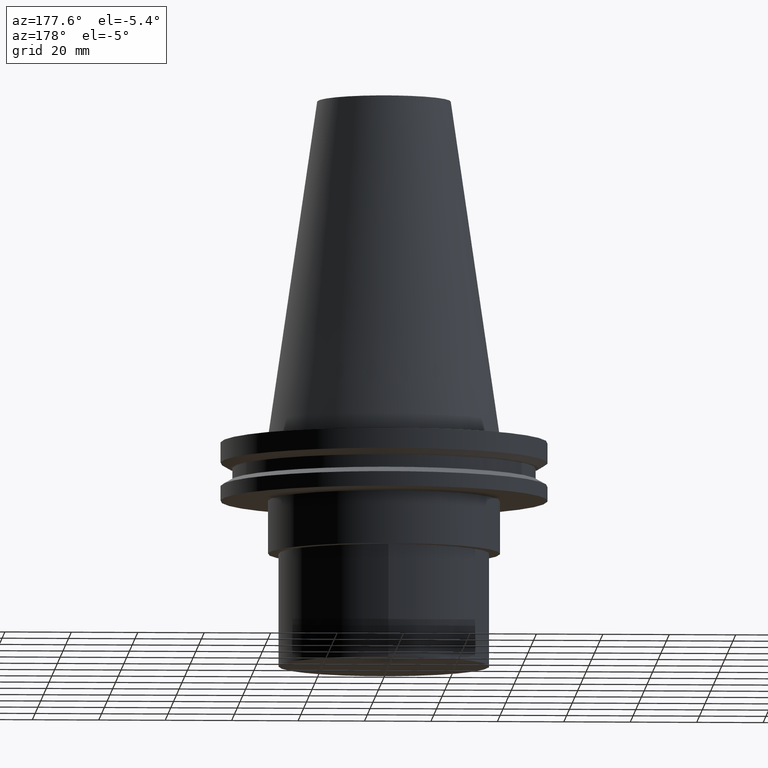
[diagram: clean part render]
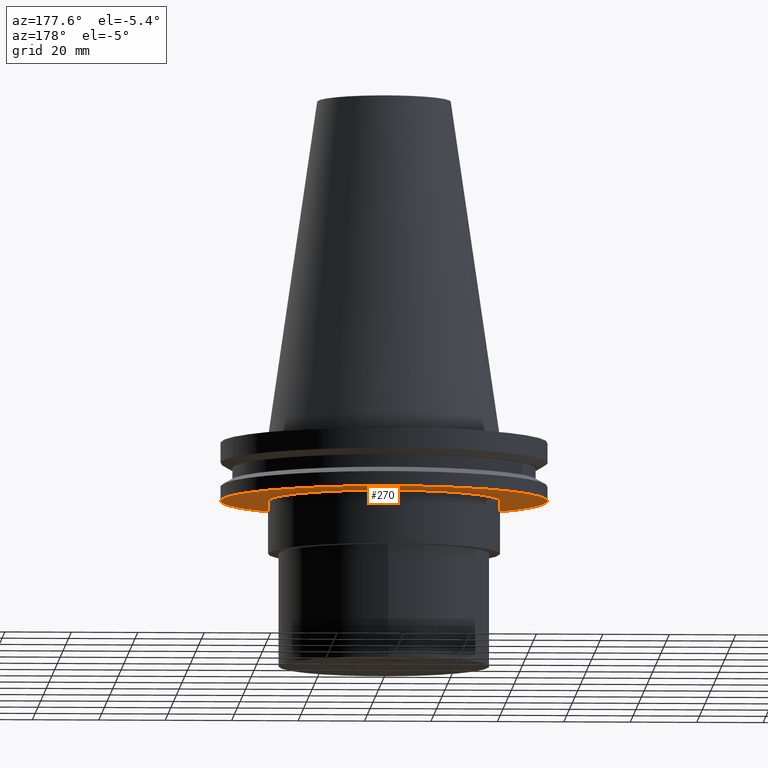
[diagram: same view with one face highlighted and labeled with its STEP entity id]
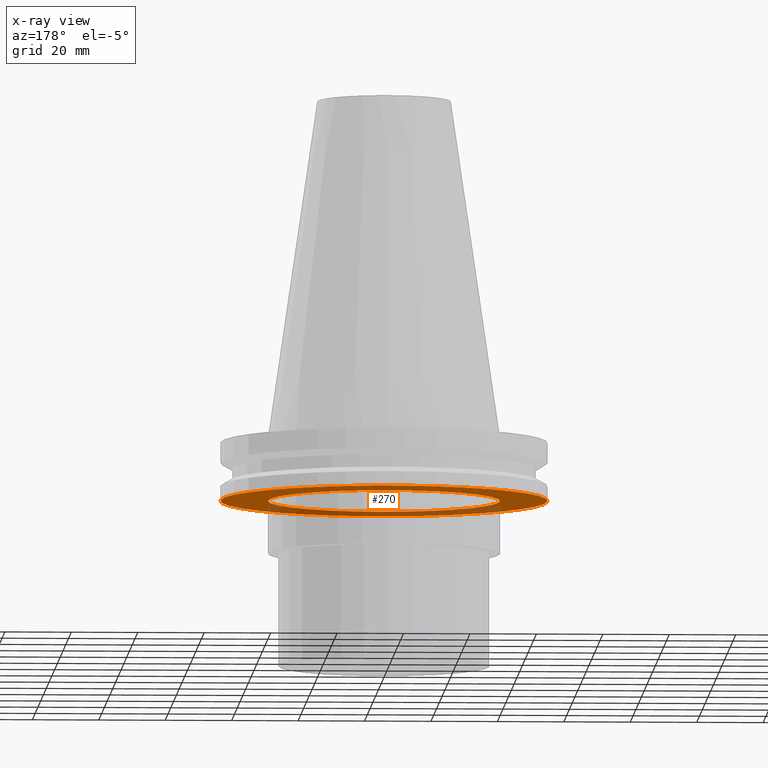
[diagram: x-ray of the same camera — body ghosted, the highlighted face saturated]
A machine part, auxiliary view. The second image highlights one B-rep face of the part: STEP entity #270.
The next image is the same camera in x-ray: the body ghosted, the highlighted face saturated — about 31% of this face is hidden behind the body in this view.
In plain terms, the highlighted planar face has unit normal (0, -0, 1).
Its self-contained STEP definition (entity closure, byte-faithful):
#24 = FACE_OUTER_BOUND ( 'NONE', #76, .T. ) ;
#32 = EDGE_LOOP ( 'NONE', ( #216 ) ) ;
#49 = AXIS2_PLACEMENT_3D ( 'NONE', #183, #269, #390 ) ;
#60 = DIRECTION ( 'NONE',  ( 1.000000000000000000, 0.000000000000000000, 0.000000000000000000 ) ) ;
#66 = CIRCLE ( 'NONE', #364, 49.21499999999998920 ) ;
#76 = EDGE_LOOP ( 'NONE', ( #155 ) ) ;
#86 = CARTESIAN_POINT ( 'NONE',  ( 0.000000000000000000, 0.000000000000000000, -19.04999999999999716 ) ) ;
#101 = AXIS2_PLACEMENT_3D ( 'NONE', #305, #394, #60 ) ;
#126 = EDGE_CURVE ( 'NONE', #233, #233, #257, .T. ) ;
#144 = PLANE ( 'NONE',  #49 ) ;
#155 = ORIENTED_EDGE ( 'NONE', *, *, #278, .F. ) ;
#183 = CARTESIAN_POINT ( 'NONE',  ( 0.000000000000000000, 49.21499999999998920, -19.04999999999999716 ) ) ;
#205 = VERTEX_POINT ( 'NONE', #331 ) ;
#209 = DIRECTION ( 'NONE',  ( -0.000000000000000000, -0.000000000000000000, 1.000000000000000000 ) ) ;
#216 = ORIENTED_EDGE ( 'NONE', *, *, #126, .T. ) ;
#233 = VERTEX_POINT ( 'NONE', #357 ) ;
#257 = CIRCLE ( 'NONE', #101, 34.92499999999999716 ) ;
#269 = DIRECTION ( 'NONE',  ( 0.000000000000000000, -0.000000000000000000, 1.000000000000000000 ) ) ;
#270 = ADVANCED_FACE ( 'NONE', ( #24, #367 ), #144, .F. ) ;
#278 = EDGE_CURVE ( 'NONE', #205, #205, #66, .T. ) ;
#304 = DIRECTION ( 'NONE',  ( 1.000000000000000000, 0.000000000000000000, 0.000000000000000000 ) ) ;
#305 = CARTESIAN_POINT ( 'NONE',  ( 0.000000000000000000, 0.000000000000000000, -19.04999999999999716 ) ) ;
#331 = CARTESIAN_POINT ( 'NONE',  ( 49.21499999999998920, 0.000000000000000000, -19.04999999999999716 ) ) ;
#357 = CARTESIAN_POINT ( 'NONE',  ( 34.92499999999999716, 0.000000000000000000, -19.04999999999999716 ) ) ;
#364 = AXIS2_PLACEMENT_3D ( 'NONE', #86, #209, #304 ) ;
#367 = FACE_BOUND ( 'NONE', #32, .T. ) ;
#390 = DIRECTION ( 'NONE',  ( 1.000000000000000000, 0.000000000000000000, 0.000000000000000000 ) ) ;
#394 = DIRECTION ( 'NONE',  ( -0.000000000000000000, -0.000000000000000000, 1.000000000000000000 ) ) ;